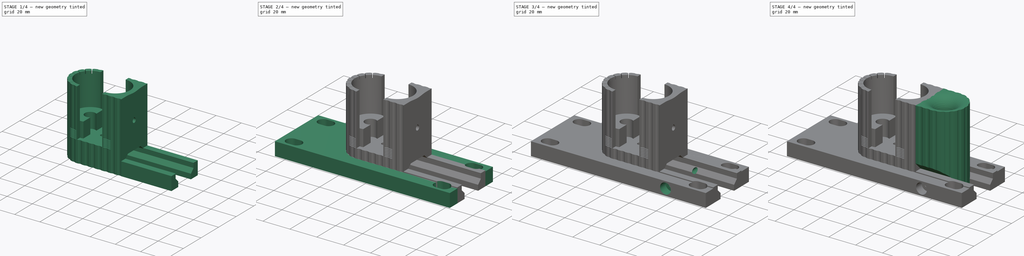
[diagram: build sequence overview — one tinted view per stage of 4, left to right]
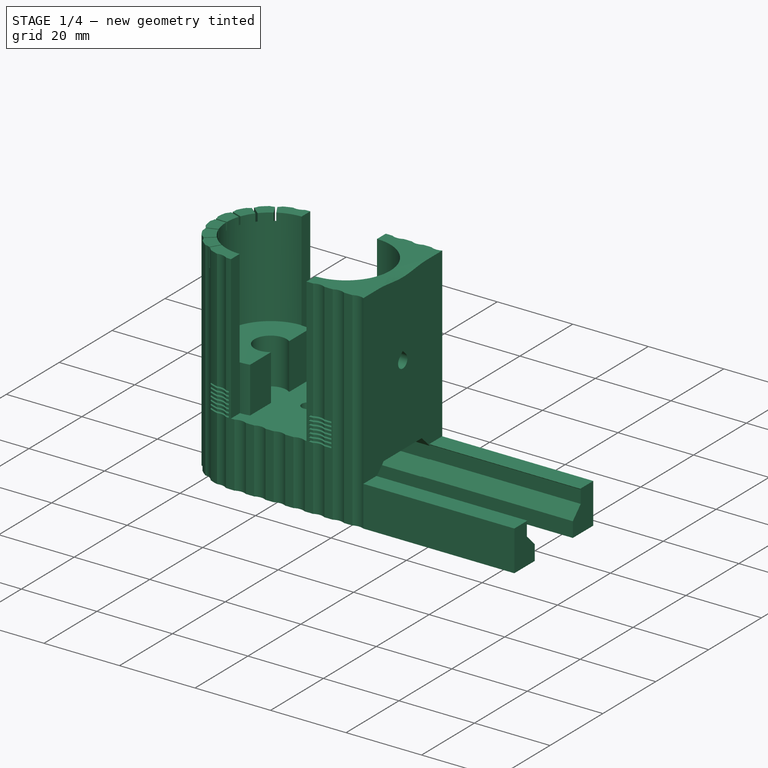
[diagram: stage 1 of 4 — iso view after this stage's code; geometry added in this stage tinted green]
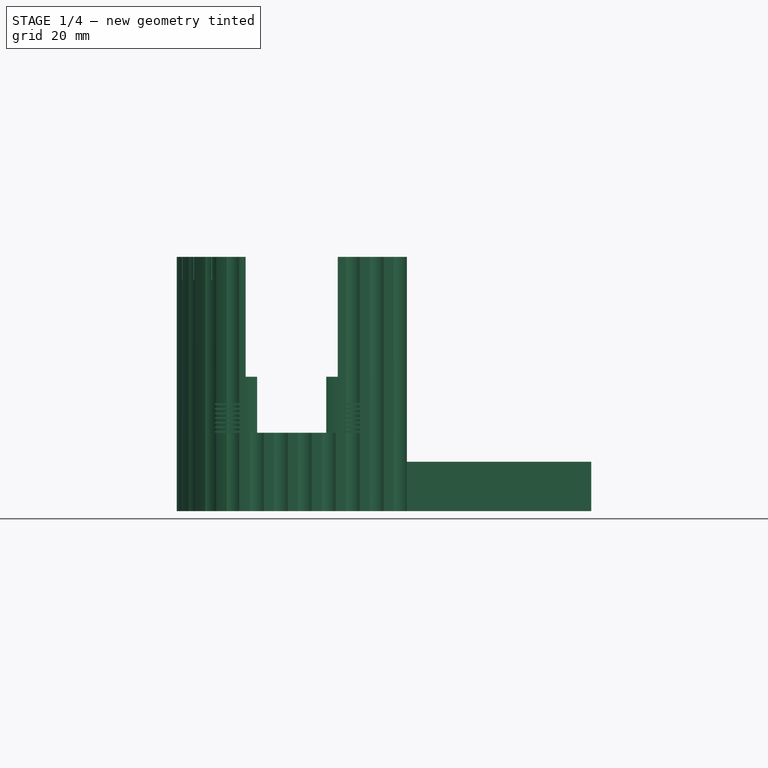
[diagram: stage 1 of 4 — front view after this stage's code; geometry added in this stage tinted green]
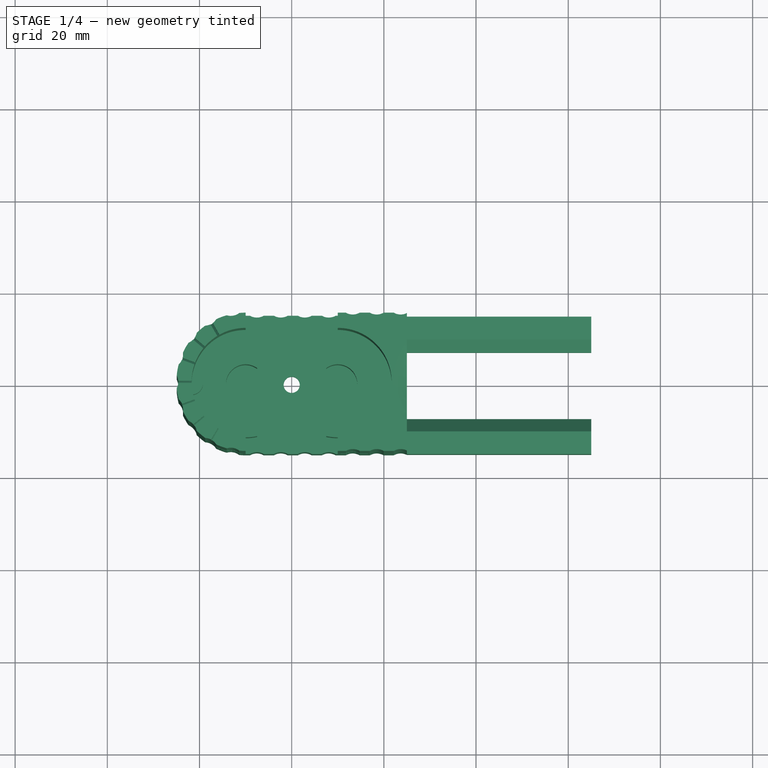
[diagram: stage 1 of 4 — top view after this stage's code; geometry added in this stage tinted green]
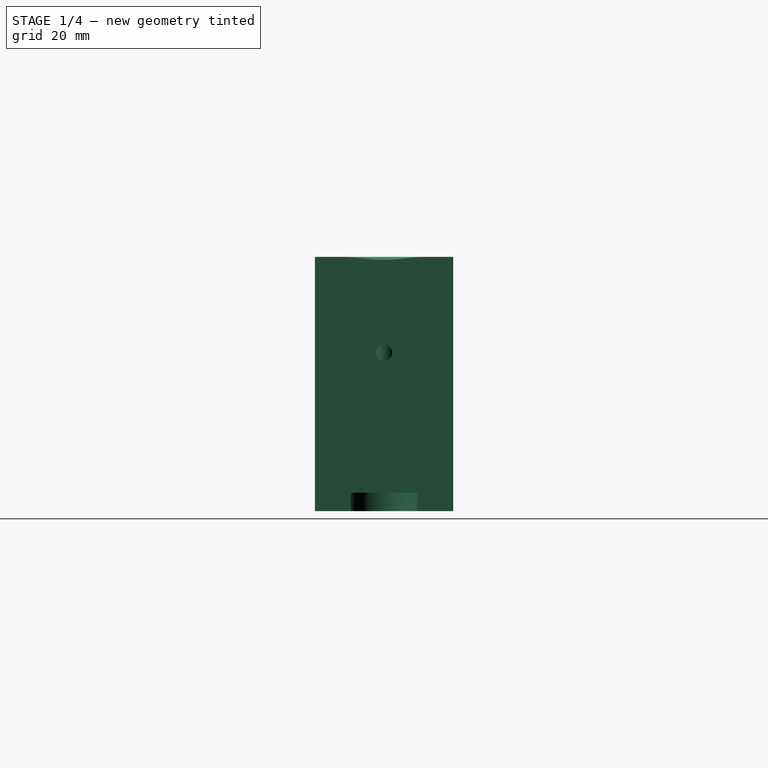
[diagram: stage 1 of 4 — right view after this stage's code; geometry added in this stage tinted green]
FCSTD DOCUMENT  (FreeCAD 0.20R29177 (Git))
Label: BodyTrimmed
License: All rights reserved
LicenseURL: http://en.wikipedia.org/wiki/All_rights_reserved
objects: Sketcher::SketchObject×8, Part::Feature×7, PartDesign::Pocket×6, App::Part×2, PartDesign::FeatureBase×2, PartDesign::Pad×2, PartDesign::Body×2, Part::Mirroring×1
note: 36 computed .brp shape members not serialized (recipe doc carries the construction recipe); baked Part::Feature solids carry a one-line shape summary decoded from their .brp

FEATURE [Sketcher::SketchObject] Sketch
  ExternalGeometry = -> [BaseFeature]
  FullyConstrained = false
  MapMode = 5
  Placement = pos=(25,0,0) rot=(0.57735,-0.57735,-0.57735;2.0944rad)
  Support = -> [BaseFeature]
  sketch-geometry (16):
    g0: LineSegment StartX=15 StartY=-1e-15 StartZ=0 EndX=15 EndY=10.75 EndZ=0
    g1: LineSegment StartX=10 StartY=7 StartZ=0 EndX=7 EndY=4 EndZ=0
    g2: LineSegment StartX=7 StartY=-1e-15 StartZ=0 EndX=15 EndY=-1e-15 EndZ=0
    g3: LineSegment StartX=7 StartY=-1e-15 StartZ=0 EndX=7 EndY=4 EndZ=0
    g4: LineSegment StartX=10 StartY=7 StartZ=0 EndX=10 EndY=10.4 EndZ=0
    g5: LineSegment StartX=10 StartY=10.4 StartZ=0 EndX=9.65 EndY=10.75 EndZ=0
    g6: LineSegment StartX=9.65 StartY=10.75 StartZ=0 EndX=15 EndY=16.1 EndZ=0
    g7: LineSegment StartX=15 StartY=16.1 StartZ=0 EndX=15 EndY=10.75 EndZ=0
    g8: LineSegment StartX=-15 StartY=-1e-15 StartZ=0 EndX=-15 EndY=10.75 EndZ=0
    g9: LineSegment StartX=-10 StartY=7 StartZ=0 EndX=-7 EndY=4 EndZ=0
    g10: LineSegment StartX=-7 StartY=-1e-15 StartZ=0 EndX=-15 EndY=-1e-15 EndZ=0
    g11: LineSegment StartX=-7 StartY=-1e-15 StartZ=0 EndX=-7 EndY=4 EndZ=0
    g12: LineSegment StartX=-10 StartY=7 StartZ=0 EndX=-10 EndY=10.4 EndZ=0
    g13: LineSegment StartX=-10 StartY=10.4 StartZ=0 EndX=-9.65 EndY=10.75 EndZ=0
    g14: LineSegment StartX=-9.65 StartY=10.75 StartZ=0 EndX=-15 EndY=16.1 EndZ=0
    g15: LineSegment StartX=-15 StartY=16.1 StartZ=0 EndX=-15 EndY=10.75 EndZ=0
  constraints (39):
    c: Coincident(g3,g2)
    c: Coincident(g3,g1)
    c: Vertical(g3)
    c: Coincident(g4,g1)
    c: Vertical(g4)
    c: Coincident(g5,g4)
    c: DistanceX(g5,g0) = 5.35
    c: Vertical(g0)
    c: Horizontal(g2)
    c: DistanceX(g2,g2) = 8
    c: DistanceY(g0,g0) = 10.75
    c: DistanceY(g4,g4) = 3.4
    c: DistanceY(g3,g3) = 4
    c: Angle(g3,g1) = 2.35619
    c: Coincident(g0,g2)
    c: Coincident(g2,g-3)
    c: Coincident(g6,g5)
    c: Coincident(g7,g6)
    c: Coincident(g7,g0)
    c: Vertical(g7)
    c: DistanceX(g4,g0) = 5
    c: Angle(g5,g4) = 2.35619
    c: Perpendicular(g5,g6)
    c: Coincident(g11,g10)
    c: Coincident(g11,g9)
    c: Vertical(g11)
    c: Coincident(g12,g9)
    c: Vertical(g12)
    c: Coincident(g13,g12)
    c: Vertical(g8)
    c: Horizontal(g10)
    c: Angle(g11,g9) = -2.35619
    c: Coincident(g8,g10)
    c: Coincident(g14,g13)
    c: Coincident(g15,g14)
    c: Coincident(g15,g8)
    c: Vertical(g15)
    c: Angle(g13,g12) = -2.35619
    c: Perpendicular(g13,g14)
FEATURE [PartDesign::FeatureBase] BaseFeature001
  BaseFeature = -> Part__Feature003
FEATURE [Sketcher::SketchObject] Sketch001
  ExternalGeometry = -> [BaseFeature001]
  FullyConstrained = false
  MapMode = 5
  Placement = pos=(25,0,0) rot=(0.57735,0.57735,0.57735;2.0944rad)
  Support = -> [BaseFeature001]
  sketch-geometry (14):
    g0: LineSegment StartX=-9.98001 StartY=10.7 StartZ=0 EndX=-14.92 EndY=10.7 EndZ=0
    g1: LineSegment StartX=-14.92 StartY=0 StartZ=0 EndX=-7.2 EndY=0 EndZ=0
    g2: LineSegment StartX=-7.2 StartY=4 StartZ=0 EndX=-10.2 EndY=7.00001 EndZ=0
    g3: LineSegment StartX=-10.2 StartY=10.48 StartZ=0 EndX=-9.98001 EndY=10.7 EndZ=0
    g4: LineSegment StartX=-10.2 StartY=10.48 StartZ=0 EndX=-10.2 EndY=7.00001 EndZ=0
    g5: LineSegment StartX=-7.2 StartY=4 StartZ=0 EndX=-7.2 EndY=0 EndZ=0
    g6: LineSegment StartX=-14.92 StartY=10.7 StartZ=0 EndX=-14.92 EndY=0 EndZ=0
    g7: LineSegment StartX=9.98001 StartY=10.7 StartZ=0 EndX=14.92 EndY=10.7 EndZ=0
    g8: LineSegment StartX=14.92 StartY=0 StartZ=0 EndX=7.2 EndY=0 EndZ=0
    g9: LineSegment StartX=7.2 StartY=4 StartZ=0 EndX=10.2 EndY=7.00001 EndZ=0
    g10: LineSegment StartX=10.2 StartY=10.48 StartZ=0 EndX=9.98001 EndY=10.7 EndZ=0
    g11: LineSegment StartX=10.2 StartY=10.48 StartZ=0 EndX=10.2 EndY=7.00001 EndZ=0
    g12: LineSegment StartX=7.2 StartY=4 StartZ=0 EndX=7.2 EndY=0 EndZ=0
    g13: LineSegment StartX=14.92 StartY=10.7 StartZ=0 EndX=14.92 EndY=0 EndZ=0
  constraints (33):
    c: Horizontal(g0)
    c: Coincident(g1,g-3)
    c: Coincident(g3,g0)
    c: Coincident(g4,g3)
    c: Coincident(g4,g2)
    c: Vertical(g4)
    c: Coincident(g5,g2)
    c: Coincident(g5,g1)
    c: Vertical(g5)
    c: Coincident(g6,g0)
    c: Coincident(g6,g1)
    c: Vertical(g6)
    c: DistanceX(g3,g-3) = 10.2
    c: DistanceX(g1,g-3) = 14.92
    c: Horizontal(g1)
    c: DistanceY(g5,g5) = 4
    c: Angle(g2,g5) = 2.35619
    c: DistanceY(g6,g6) = 10.7
    c: DistanceY(g4,g4) = 3.48
    c: DistanceX(g0,g0) = 4.94
    c: Horizontal(g7)
    c: Coincident(g10,g7)
    c: Coincident(g11,g10)
    c: Coincident(g11,g9)
    c: Vertical(g11)
    c: Coincident(g12,g9)
    c: Coincident(g12,g8)
    c: Vertical(g12)
    c: Coincident(g13,g7)
    c: Coincident(g13,g8)
    c: Vertical(g13)
    c: Horizontal(g8)
    c: Angle(g9,g12) = -2.35619
FEATURE [PartDesign::Pad] Pad
  BaseFeature = -> BaseFeature001
  Direction = (1,0,0)
  Length = 40
  Length2 = 10
  Profile = -> Sketch001
  ReferenceAxis = -> Sketch001 [N_Axis]
  Type = 0
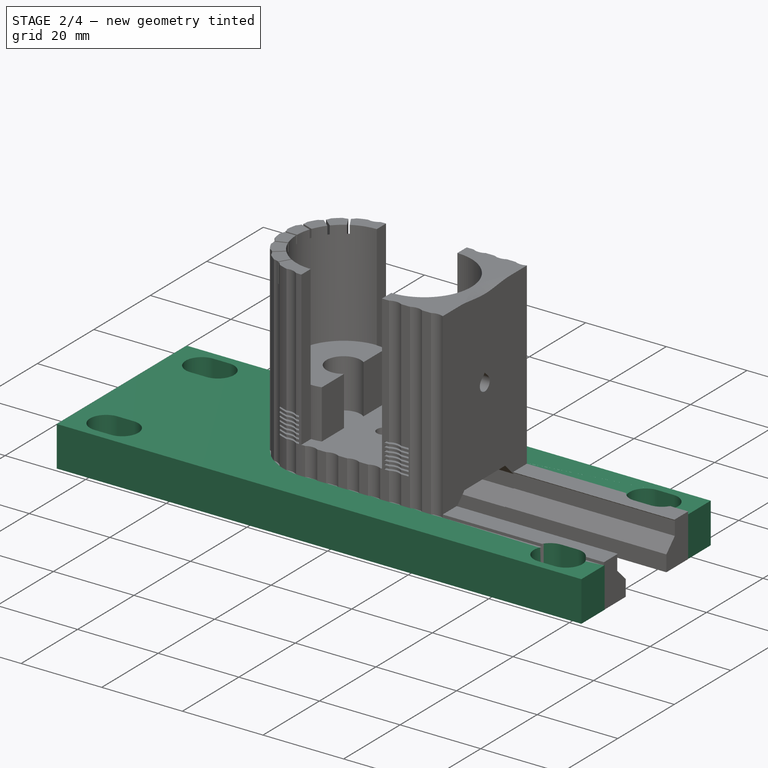
[diagram: stage 2 of 4 — iso view after this stage's code; geometry added in this stage tinted green]
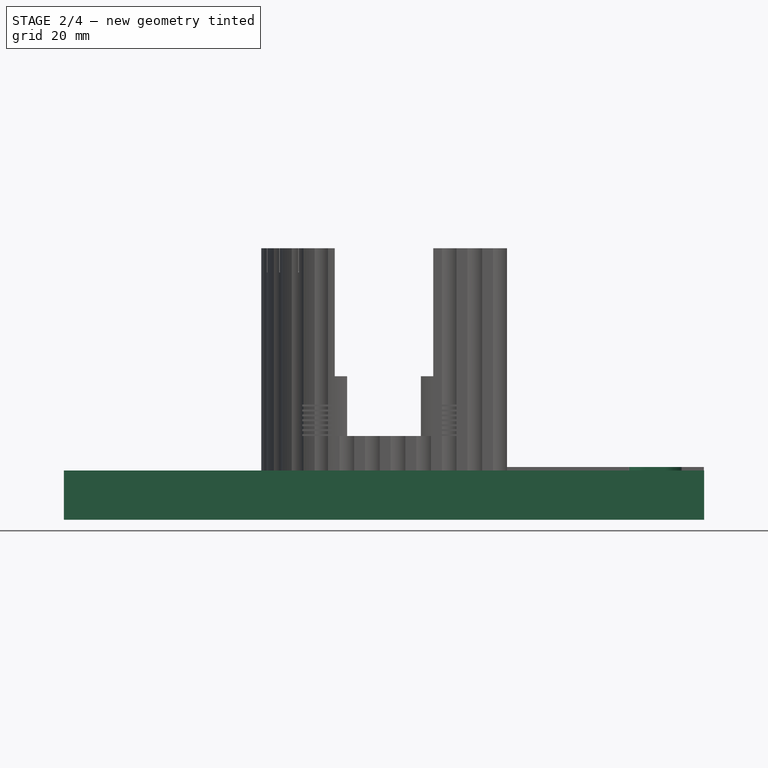
[diagram: stage 2 of 4 — front view after this stage's code; geometry added in this stage tinted green]
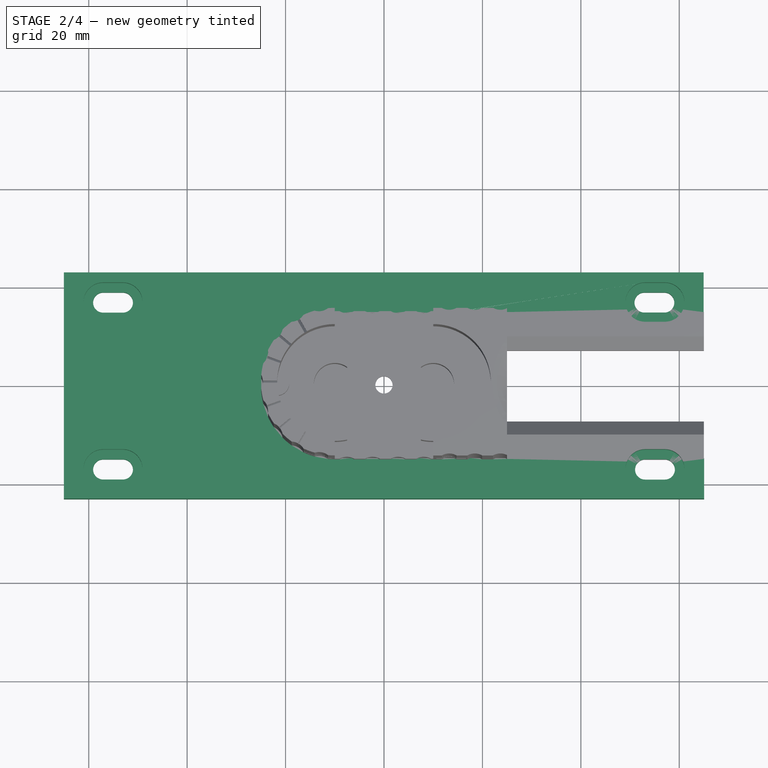
[diagram: stage 2 of 4 — top view after this stage's code; geometry added in this stage tinted green]
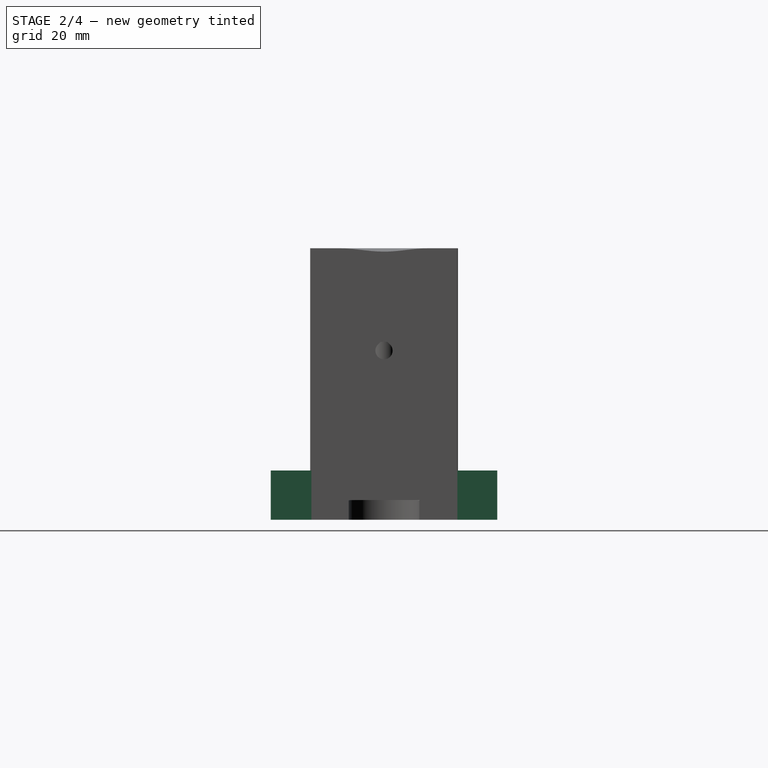
[diagram: stage 2 of 4 — right view after this stage's code; geometry added in this stage tinted green]
FEATURE [PartDesign::Body] Body  label="Holder"
  BaseFeature = -> Part__Feature007
  Group = -> [BaseFeature,Sketch,Pocket]
  Origin = -> Origin002
  Placement = pos=(25,0,0) rot=(0,0,1;0rad)
  Tip = -> Pocket
FEATURE [Sketcher::SketchObject] Sketch002
  FullyConstrained = false
  MapMode = 2
  Support = -> [Pad]
  sketch-geometry (26):
    g0: LineSegment StartX=65.06 StartY=-23 StartZ=0 EndX=65.06 EndY=-14.75 EndZ=0
    g1: LineSegment StartX=64.94 StartY=23 StartZ=0 EndX=-65.06 EndY=23 EndZ=0
    g2: LineSegment StartX=-65.06 StartY=23 StartZ=0 EndX=-65.06 EndY=-23 EndZ=0
    g3: LineSegment StartX=-65.06 StartY=-23 StartZ=0 EndX=65.06 EndY=-23 EndZ=0
    g4: GeomPoint X=0 Y=0 Z=0
    g5: ArcOfCircle CenterX=-57.06 CenterY=16.95 CenterZ=0 NormalX=0 NormalY=0 NormalZ=1 AngleXU=0 Radius=2.05 StartAngle=1.5708 EndAngle=4.71239
    g6: ArcOfCircle CenterX=-53.06 CenterY=16.95 CenterZ=0 NormalX=0 NormalY=0 NormalZ=1 AngleXU=0 Radius=2.05 StartAngle=4.71239 EndAngle=7.85398
    g7: LineSegment StartX=-57.06 StartY=14.9 StartZ=0 EndX=-53.06 EndY=14.9 EndZ=0
    g8: LineSegment StartX=-53.06 StartY=19 StartZ=0 EndX=-57.06 EndY=19 EndZ=0
    g9: ArcOfCircle CenterX=-57.06 CenterY=-16.9634 CenterZ=0 NormalX=0 NormalY=0 NormalZ=1 AngleXU=0 Radius=2.05 StartAngle=1.5708 EndAngle=4.71239
    g10: ArcOfCircle CenterX=-53.06 CenterY=-16.9634 CenterZ=0 NormalX=0 NormalY=0 NormalZ=1 AngleXU=0 Radius=2.05 StartAngle=4.71239 EndAngle=7.85398
    g11: LineSegment StartX=-57.06 StartY=-14.9134 StartZ=0 EndX=-53.06 EndY=-14.9134 EndZ=0
    g12: LineSegment StartX=-53.06 StartY=-19.0134 StartZ=0 EndX=-57.06 EndY=-19.0134 EndZ=0
    g13: ArcOfCircle CenterX=57.06 CenterY=-16.9782 CenterZ=0 NormalX=0 NormalY=0 NormalZ=1 AngleXU=0 Radius=2.05 StartAngle=4.71239 EndAngle=7.85398
    g14: ArcOfCircle CenterX=53.06 CenterY=-16.9782 CenterZ=0 NormalX=0 NormalY=0 NormalZ=1 AngleXU=0 Radius=2.05 StartAngle=1.5708 EndAngle=4.71239
    g15: LineSegment StartX=57.06 StartY=-14.9282 StartZ=0 EndX=53.06 EndY=-14.9282 EndZ=0
    g16: LineSegment StartX=53.06 StartY=-19.0282 StartZ=0 EndX=57.06 EndY=-19.0282 EndZ=0
    g17: ArcOfCircle CenterX=56.94 CenterY=16.9561 CenterZ=0 NormalX=0 NormalY=0 NormalZ=1 AngleXU=0 Radius=2.05 StartAngle=4.71239 EndAngle=7.85398
    g18: ArcOfCircle CenterX=52.94 CenterY=16.9561 CenterZ=0 NormalX=0 NormalY=0 NormalZ=1 AngleXU=0 Radius=2.05 StartAngle=1.5708 EndAngle=4.71239
    g19: LineSegment StartX=56.94 StartY=14.9061 StartZ=0 EndX=52.94 EndY=14.9061 EndZ=0
    g20: LineSegment StartX=52.94 StartY=19.0061 StartZ=0 EndX=56.94 EndY=19.0061 EndZ=0
    g21: LineSegment StartX=64.94 StartY=14.75 StartZ=0 EndX=-10.06 EndY=14.75 EndZ=0
    g22: LineSegment StartX=-10.06 StartY=14.75 StartZ=0 EndX=-10.06 EndY=-14.75 EndZ=0
    g23: LineSegment StartX=-10.06 StartY=-14.75 StartZ=0 EndX=65.06 EndY=-14.75 EndZ=0
    g24: GeomPoint X=27.5 Y=0 Z=0
    g25: LineSegment StartX=64.94 StartY=14.75 StartZ=0 EndX=64.94 EndY=23 EndZ=0
  constraints (63):
    c: Coincident(g25,g1)
    c: Coincident(g1,g2)
    c: Coincident(g2,g3)
    c: Coincident(g3,g0)
    c: Horizontal(g1)
    c: Horizontal(g3)
    c: Vertical(g0)
    c: Vertical(g2)
    c: Symmetric(g1,g0,g4)
    c: Coincident(g4,g-1)
    c: DistanceX(g1,g1) = 130
    c: DistanceY(g0,g25) = 46
    c: Tangent(g5,g7) = -1.5708
    c: Tangent(g7,g6) = -1.5708
    c: Tangent(g6,g8) = -1.5708
    c: Tangent(g8,g5) = -1.5708
    c: Equal(g5,g6)
    c: DistanceX(g8,g8) = 4
    c: Distance(g5,g2) = 8
    c: Radius(g6) = 2.05
    c: Horizontal(g8)
    c: Distance(g6,g1) = 4
    c: Tangent(g9,g11) = 1.5708
    c: Tangent(g11,g10) = 1.5708
    c: Tangent(g10,g12) = 1.5708
    c: Tangent(g12,g9) = 1.5708
    c: Equal(g9,g10)
    c: Radius(g10) = 2.05
    c: Horizontal(g12)
    c: Tangent(g13,g15) = -1.5708
    c: Tangent(g15,g14) = -1.5708
    c: Tangent(g14,g16) = -1.5708
    c: Tangent(g16,g13) = -1.5708
    c: Equal(g13,g14)
    c: Radius(g14) = 2.05
    c: Horizontal(g16)
    c: Tangent(g17,g19) = 1.5708
    c: Tangent(g19,g18) = 1.5708
    c: Tangent(g18,g20) = 1.5708
    c: Tangent(g20,g17) = 1.5708
    c: Equal(g17,g18)
    c: Radius(g18) = 2.05
    c: Horizontal(g20)
    c: Coincident(g21,g22)
    c: Coincident(g22,g23)
    c: Horizontal(g21)
    c: Horizontal(g23)
    c: Vertical(g22)
    c: Symmetric(g21,g23,g24)
    c: PointOnObject(g24,g-1)
    c: DistanceY(g22,g22) = 29.5
    c: DistanceX(g2,g9) = 8
    c: Vertical(g25)
    c: DistanceX(g11,g11) = 4
    c: DistanceX(g16,g16) = 4
    c: DistanceX(g2,g4) = 65.06
    c: DistanceX(g17,g1) = 8
    c: DistanceX(g20,g20) = 4
    c: DistanceX(g13,g0) = 8
    c: PointOnObject(g21,g25)
    c: DistanceY(g25,g25) = 8.25
    c: DistanceX(g21,g21) = 75
    c: Coincident(g23,g0)
FEATURE [PartDesign::Pad] Pad001
  BaseFeature = -> Pad
  Direction = (0,0,1)
  Length = 10
  Length2 = 10
  Profile = -> Sketch002
  ReferenceAxis = -> Sketch002 [N_Axis]
  Type = 0
FEATURE [Sketcher::SketchObject] Sketch003
  ExternalGeometry = -> [Pad001,Sketch002]
  FullyConstrained = false
  MapMode = 5
  Placement = pos=(0,0,10) rot=(0,0,1;0rad)
  Support = -> [Pad001]
  sketch-geometry (16):
    g0: ArcOfCircle CenterX=-57.06 CenterY=16.95 CenterZ=0 NormalX=0 NormalY=0 NormalZ=1 AngleXU=0 Radius=4 StartAngle=1.5708 EndAngle=4.71239
    g1: ArcOfCircle CenterX=-53.06 CenterY=16.95 CenterZ=0 NormalX=0 NormalY=0 NormalZ=1 AngleXU=0 Radius=4 StartAngle=4.71239 EndAngle=7.85398
    g2: LineSegment StartX=-57.06 StartY=12.95 StartZ=0 EndX=-53.06 EndY=12.95 EndZ=0
    g3: LineSegment StartX=-53.06 StartY=20.95 StartZ=0 EndX=-57.06 EndY=20.95 EndZ=0
    g4: ArcOfCircle CenterX=-57.06 CenterY=-16.95 CenterZ=0 NormalX=0 NormalY=0 NormalZ=1 AngleXU=0 Radius=4 StartAngle=1.5708 EndAngle=4.71239
    g5: ArcOfCircle CenterX=-53.06 CenterY=-16.95 CenterZ=0 NormalX=0 NormalY=0 NormalZ=1 AngleXU=0 Radius=4 StartAngle=4.71239 EndAngle=7.85398
    g6: LineSegment StartX=-57.06 StartY=-12.95 StartZ=0 EndX=-53.06 EndY=-12.95 EndZ=0
    g7: LineSegment StartX=-53.06 StartY=-20.95 StartZ=0 EndX=-57.06 EndY=-20.95 EndZ=0
    g8: ArcOfCircle CenterX=57.06 CenterY=16.95 CenterZ=0 NormalX=0 NormalY=0 NormalZ=1 AngleXU=0 Radius=4 StartAngle=4.71239 EndAngle=7.85398
    g9: ArcOfCircle CenterX=53.06 CenterY=16.95 CenterZ=0 NormalX=0 NormalY=0 NormalZ=1 AngleXU=0 Radius=4 StartAngle=1.5708 EndAngle=4.71239
    g10: LineSegment StartX=57.06 StartY=12.95 StartZ=0 EndX=53.06 EndY=12.95 EndZ=0
    g11: LineSegment StartX=53.06 StartY=20.95 StartZ=0 EndX=57.06 EndY=20.95 EndZ=0
    g12: ArcOfCircle CenterX=57.06 CenterY=-16.95 CenterZ=0 NormalX=0 NormalY=0 NormalZ=1 AngleXU=0 Radius=4 StartAngle=4.71239 EndAngle=7.85398
    g13: ArcOfCircle CenterX=53.06 CenterY=-16.95 CenterZ=0 NormalX=0 NormalY=0 NormalZ=1 AngleXU=0 Radius=4 StartAngle=1.5708 EndAngle=4.71239
    g14: LineSegment StartX=57.06 StartY=-12.95 StartZ=0 EndX=53.06 EndY=-12.95 EndZ=0
    g15: LineSegment StartX=53.06 StartY=-20.95 StartZ=0 EndX=57.06 EndY=-20.95 EndZ=0
  constraints (26):
    c: Tangent(g0,g2) = -1.5708
    c: Tangent(g2,g1) = -1.5708
    c: Tangent(g1,g3) = -1.5708
    c: Tangent(g3,g0) = -1.5708
    c: Equal(g0,g1)
    c: Coincident(g0,g-4)
    c: Coincident(g1,g-5)
    c: Radius(g1) = 4
    c: Tangent(g4,g6) = 1.5708
    c: Tangent(g6,g5) = 1.5708
    c: Tangent(g5,g7) = 1.5708
    c: Tangent(g7,g4) = 1.5708
    c: Equal(g4,g5)
    c: Radius(g5) = 4
    c: Tangent(g8,g10) = 1.5708
    c: Tangent(g10,g9) = 1.5708
    c: Tangent(g9,g11) = 1.5708
    c: Tangent(g11,g8) = 1.5708
    c: Equal(g8,g9)
    c: Radius(g9) = 4
    c: Tangent(g12,g14) = -1.5708
    c: Tangent(g14,g13) = -1.5708
    c: Tangent(g13,g15) = -1.5708
    c: Tangent(g15,g12) = -1.5708
    c: Equal(g12,g13)
    c: Radius(g13) = 4
FEATURE [PartDesign::Pocket] Pocket001
  BaseFeature = -> Pad001
  Direction = (0,0,-1)
  Length = 5
  Length2 = 5
  Profile = -> Sketch003
  ReferenceAxis = -> Sketch003 [N_Axis]
  Type = 4
FEATURE [Sketcher::SketchObject] Sketch004
  FullyConstrained = true
  MapMode = 5
  Placement = pos=(65.06,0,0) rot=(0.57735,0.57735,0.57735;2.0944rad)
  Support = -> [Pocket001]
  sketch-geometry (1):
    g0: Circle CenterX=30 CenterY=5 CenterZ=0 NormalX=0 NormalY=0 NormalZ=1 AngleXU=0 Radius=2.25
  constraints (3):
    c: Radius(g0) = 2.25  'adjust_screw'
    c: Distance(g0,g-1) = 5
    c: DistanceX(g-1,g0) = 30
FEATURE [PartDesign::Pocket] Pocket002
  BaseFeature = -> Pocket001
  Direction = (-1,0,0)
  Length = 0
  Length2 = 4
  Profile = -> Sketch004
  ReferenceAxis = -> Sketch004 [N_Axis]
  Type = 1
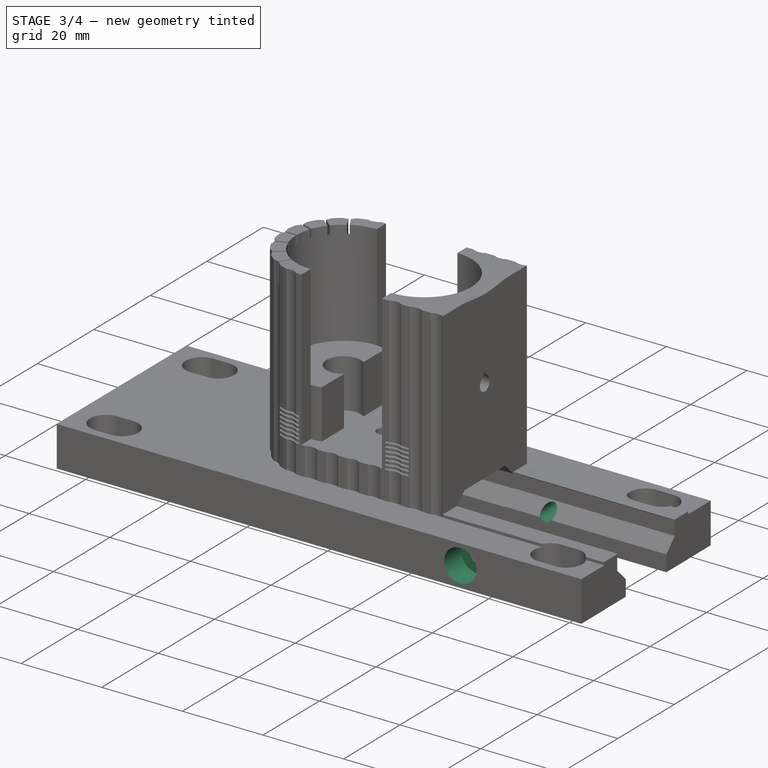
[diagram: stage 3 of 4 — iso view after this stage's code; geometry added in this stage tinted green]
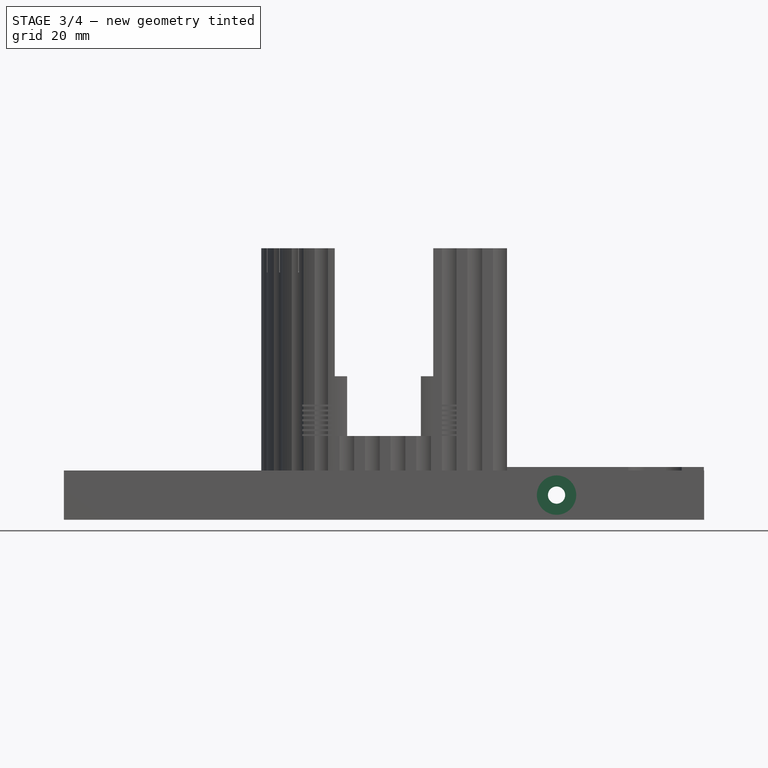
[diagram: stage 3 of 4 — front view after this stage's code; geometry added in this stage tinted green]
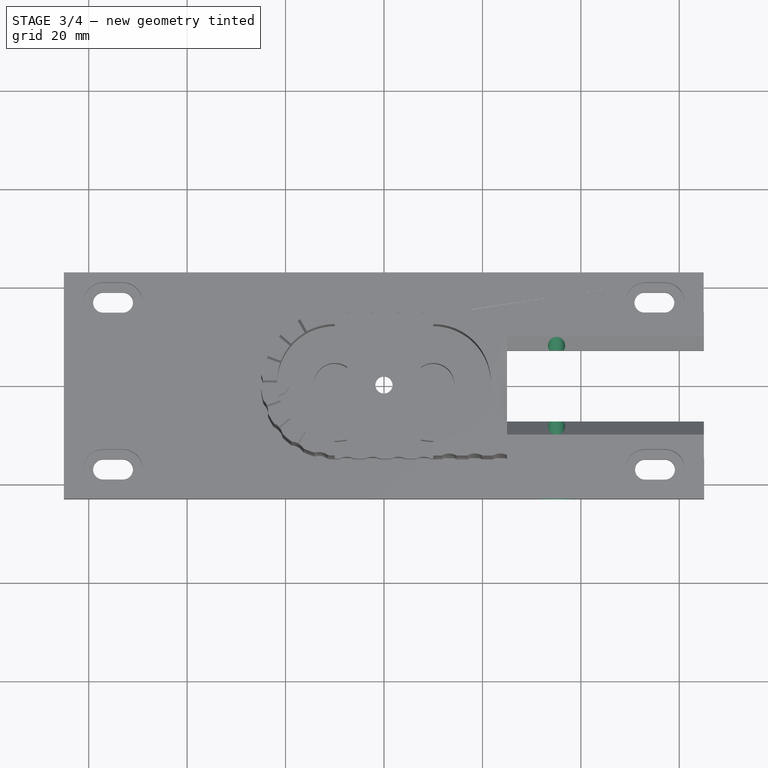
[diagram: stage 3 of 4 — top view after this stage's code; geometry added in this stage tinted green]
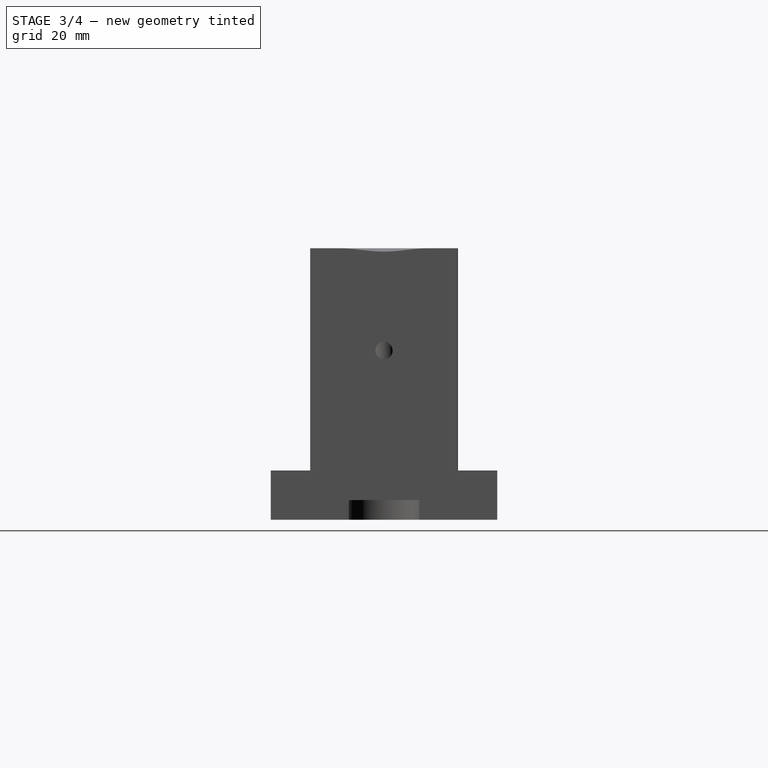
[diagram: stage 3 of 4 — right view after this stage's code; geometry added in this stage tinted green]
FEATURE [Sketcher::SketchObject] Sketch005
  ExternalGeometry = -> [Pocket002]
  FullyConstrained = true
  MapMode = 5
  Placement = pos=(0,-23,0) rot=(1,0,0;1.5708rad)
  Support = -> [Pocket002]
  sketch-geometry (1):
    g0: Circle CenterX=35.06 CenterY=5 CenterZ=0 NormalX=0 NormalY=0 NormalZ=1 AngleXU=0 Radius=1.75
  constraints (3):
    c: Radius(g0) = 1.75
    c: Distance(g0,g-4) = 30
    c: Distance(g0,g-3) = 5
FEATURE [PartDesign::Pocket] Pocket003
  BaseFeature = -> Pocket002
  Direction = (0,1,-2e-16)
  Length = 5
  Length2 = 5
  Profile = -> Sketch005
  ReferenceAxis = -> Sketch005 [N_Axis]
  Type = 1
FEATURE [Sketcher::SketchObject] Sketch006
  ExternalGeometry = -> [Pocket003]
  FullyConstrained = true
  MapMode = 5
  Placement = pos=(0,23,0) rot=(0,0.707107,0.707107;3.14159rad)
  Support = -> [Pocket003]
  sketch-geometry (1):
    g0: Circle CenterX=-35.06 CenterY=5 CenterZ=0 NormalX=0 NormalY=0 NormalZ=1 AngleXU=0 Radius=4
  constraints (2):
    c: Coincident(g0,g-3)
    c: Radius(g0) = 4
FEATURE [PartDesign::Pocket] Pocket004
  BaseFeature = -> Pocket003
  Direction = (0,-1,2e-16)
  Length = 5
  Length2 = 5
  Profile = -> Sketch006
  ReferenceAxis = -> Sketch006 [N_Axis]
  Type = 0
FEATURE [Sketcher::SketchObject] Sketch007
  ExternalGeometry = -> [Pocket004]
  FullyConstrained = true
  MapMode = 5
  Placement = pos=(0,-23,0) rot=(1,0,0;1.5708rad)
  Support = -> [Pocket004]
  sketch-geometry (1):
    g0: Circle CenterX=35.06 CenterY=5 CenterZ=0 NormalX=0 NormalY=0 NormalZ=1 AngleXU=0 Radius=4
  constraints (2):
    c: Coincident(g0,g-3)
    c: Radius(g0) = 4
FEATURE [PartDesign::Pocket] Pocket005
  BaseFeature = -> Pocket004
  Direction = (0,1,-2e-16)
  Length = 6
  Length2 = 5
  Profile = -> Sketch007
  ReferenceAxis = -> Sketch007 [N_Axis]
  Type = 0
FEATURE [PartDesign::Body] Body001  label="Body"
  BaseFeature = -> Part__Feature003
  Group = -> [BaseFeature001,Sketch001,Pad,Sketch002,Pad001,Sketch003,Pocket001,Sketch004,Pocket002,Sketch005,Pocket003,Sketch006,Pocket004,Sketch007,Pocket005]
  Origin = -> Origin003
  Tip = -> Pocket005
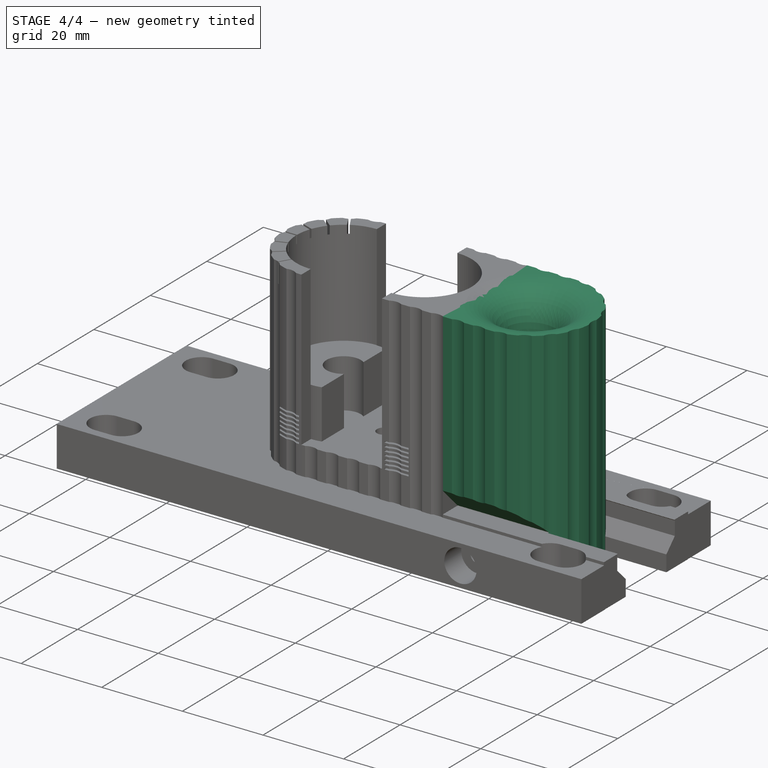
[diagram: stage 4 of 4 — iso view after this stage's code; geometry added in this stage tinted green]
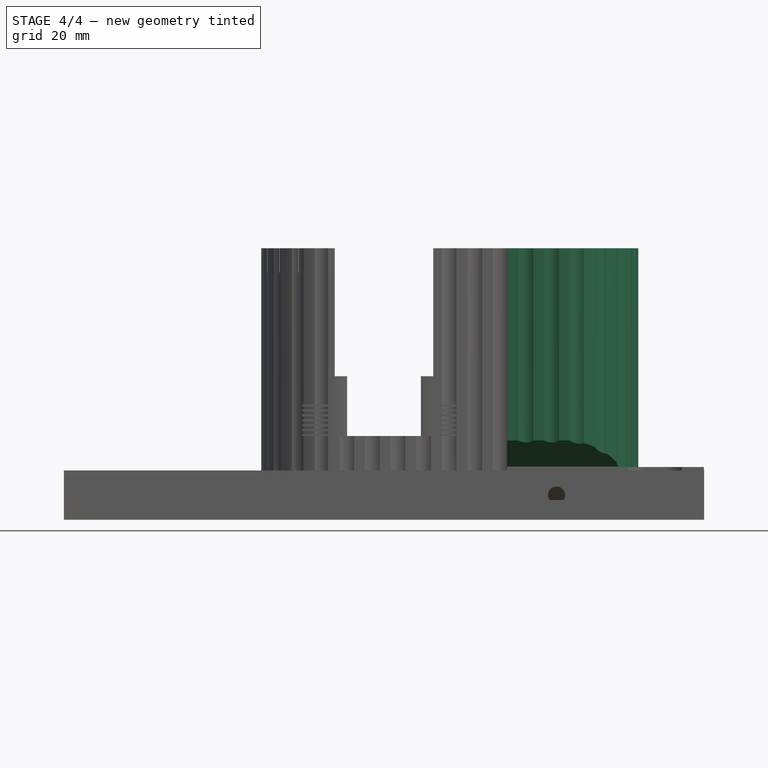
[diagram: stage 4 of 4 — front view after this stage's code; geometry added in this stage tinted green]
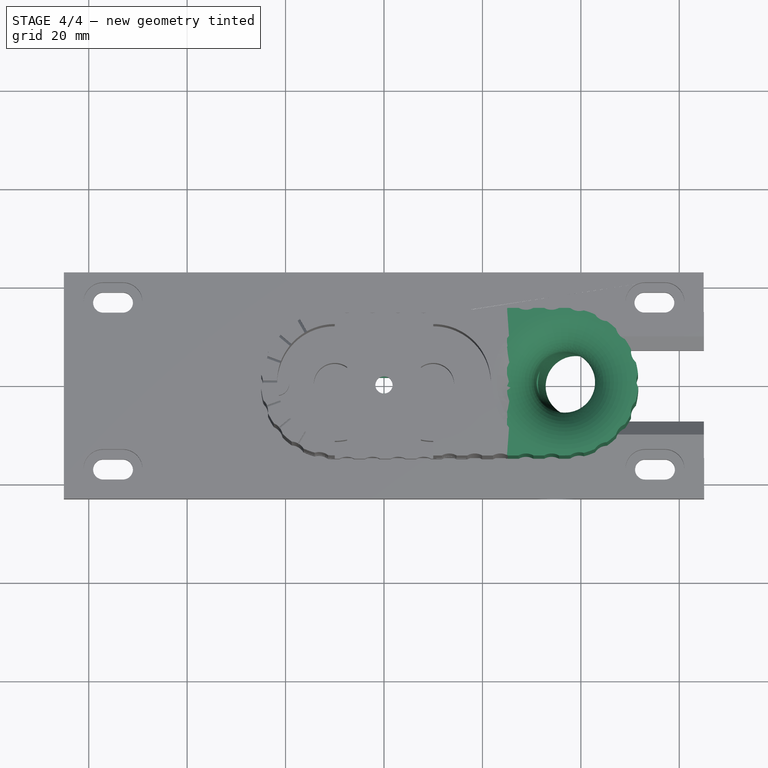
[diagram: stage 4 of 4 — top view after this stage's code; geometry added in this stage tinted green]
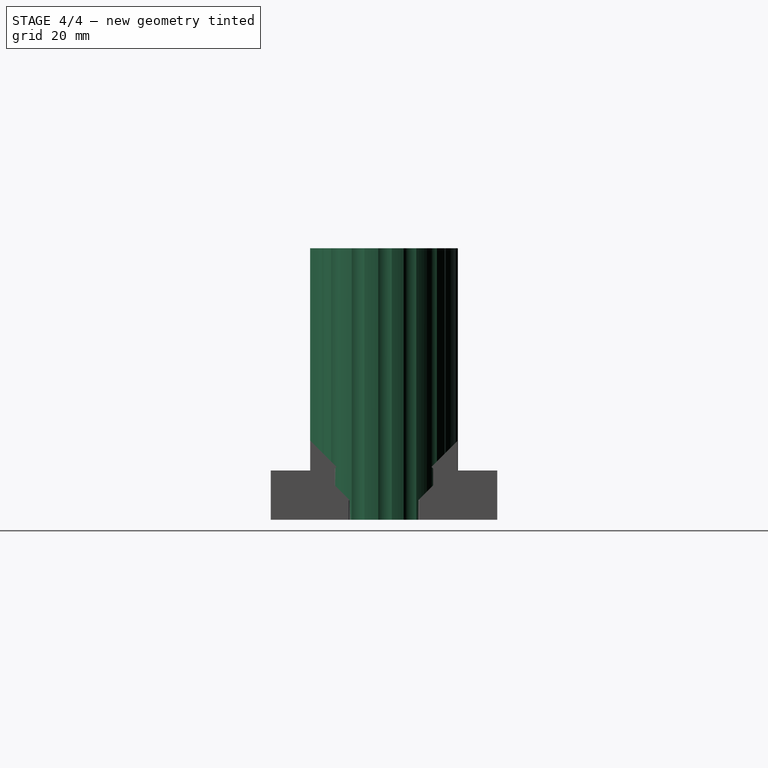
[diagram: stage 4 of 4 — right view after this stage's code; geometry added in this stage tinted green]
FEATURE [Part::Feature] Part__Feature  label="Cutter608"
  Placement = pos=(0,0,29.15) rot=(0,0,1;0rad)
  shape: bbox 43.31 x 23.3 x 19.4 mm, 89 faces (baked)
FEATURE [Part::Feature] Part__Feature001  label="Cutter609"
  Placement = pos=(0,0,29.15) rot=(0,0,1;0rad)
  shape: bbox 22 x 22 x 7 mm, 6 faces (baked)
FEATURE [Part::Feature] Part__Feature002  label="Cutter610"
  Placement = pos=(0,0,29.15) rot=(0,0,1;0rad)
  shape: bbox 22 x 22 x 7 mm, 6 faces (baked)
FEATURE [App::Part] Cutter608  label="Cutter611"
  Group = -> [Part__Feature,Part__Feature001,Part__Feature002]
  Origin = -> Origin
FEATURE [Part::Feature] Part__Feature003  label="Body608"
  shape: bbox 52.35 x 30 x 55.15 mm, 341 faces (baked)
FEATURE [Part::Feature] Part__Feature005  label="SlidingGuage608"
  Placement = pos=(-1e-15,-1e-15,6) rot=(0,0,1;0rad)
  shape: bbox 19.92 x 30.02 x 32.17 mm, 96 faces (baked)
FEATURE [Part::Feature] Part__Feature006  label="Cap608 15mm"
  shape: bbox 33 x 33 x 23 mm, 15 faces (baked)
FEATURE [Part::Feature] Part__Feature007  label="BottleHolder608 12mm"
  shape: bbox 58.88 x 30.01 x 55.76 mm, 80 faces (baked)
FEATURE [App::Part] Bearing_cutter_v23  label="Bearing cutter v23"
  Group = -> [Cutter608,Part__Feature005,Part__Feature006]
  Origin = -> Origin001
FEATURE [PartDesign::FeatureBase] BaseFeature
  BaseFeature = -> Part__Feature007
FEATURE [Part::Mirroring] Part__Mirroring  label="Sketch (Mirror #1)"
  Base = (0,0,0)
  Normal = (0,1,0)
  Source = -> Sketch
FEATURE [PartDesign::Pocket] Pocket
  BaseFeature = -> BaseFeature
  Direction = (1,0,0)
  Length = 5
  Length2 = 5
  Profile = -> Sketch
  ReferenceAxis = -> Sketch [N_Axis]
  Type = 1
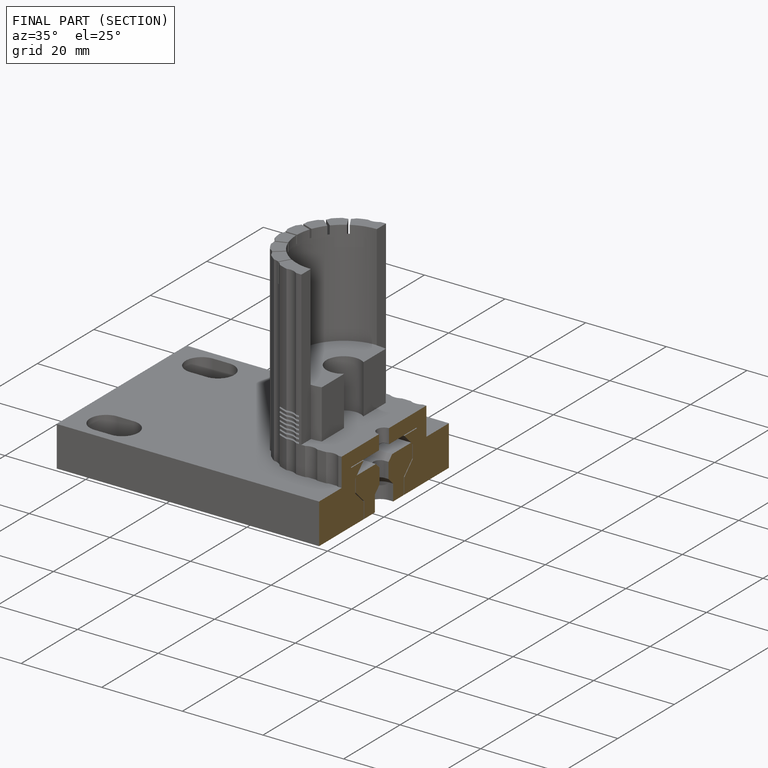
[diagram: finished part — half-section view (interior)]
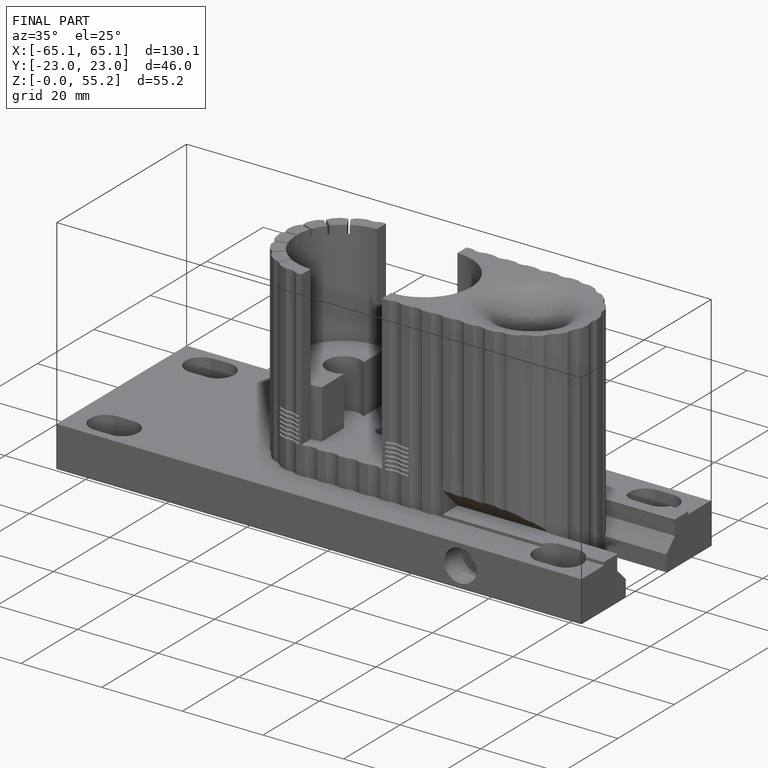
[diagram: finished part — iso view with bounding-box wireframe]
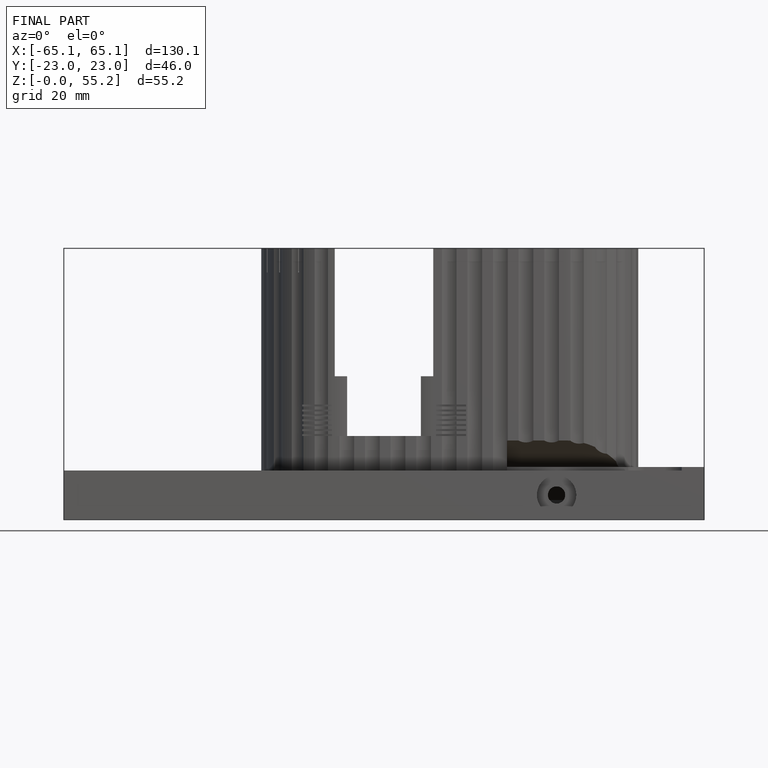
[diagram: finished part — front view with bounding-box wireframe]
